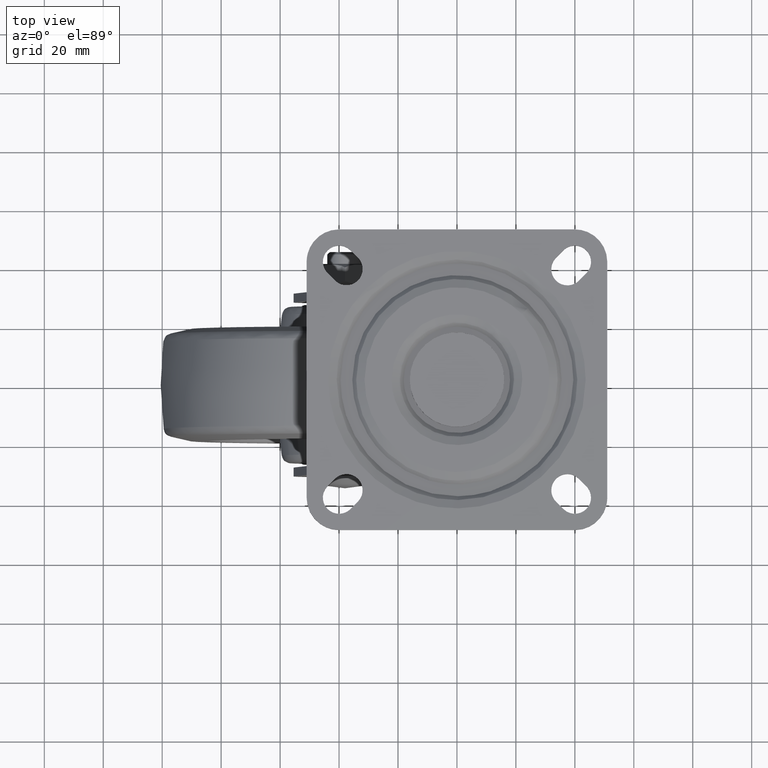
[diagram: clean part render]
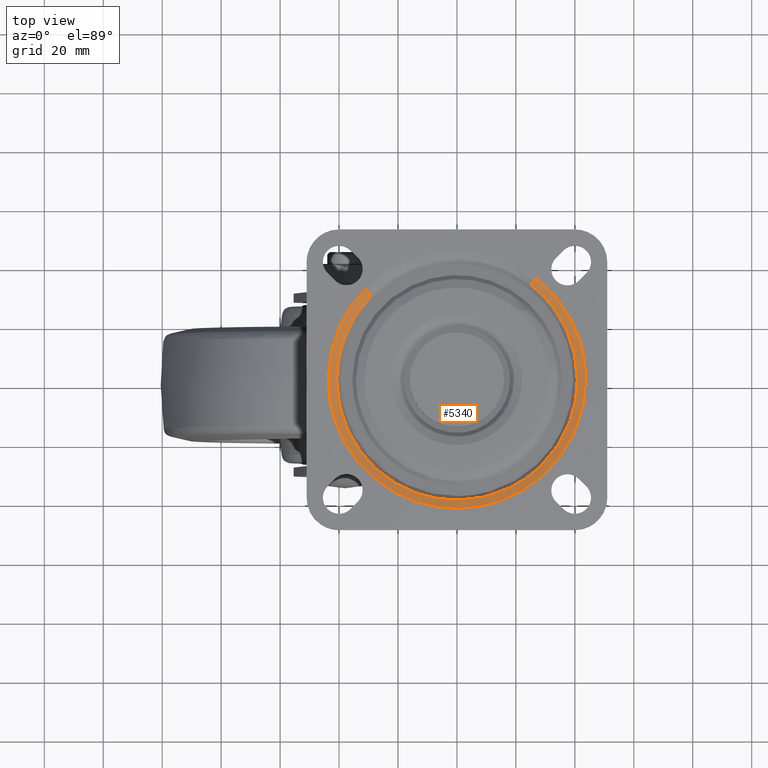
[diagram: same view with one face highlighted and labeled with its STEP entity id]
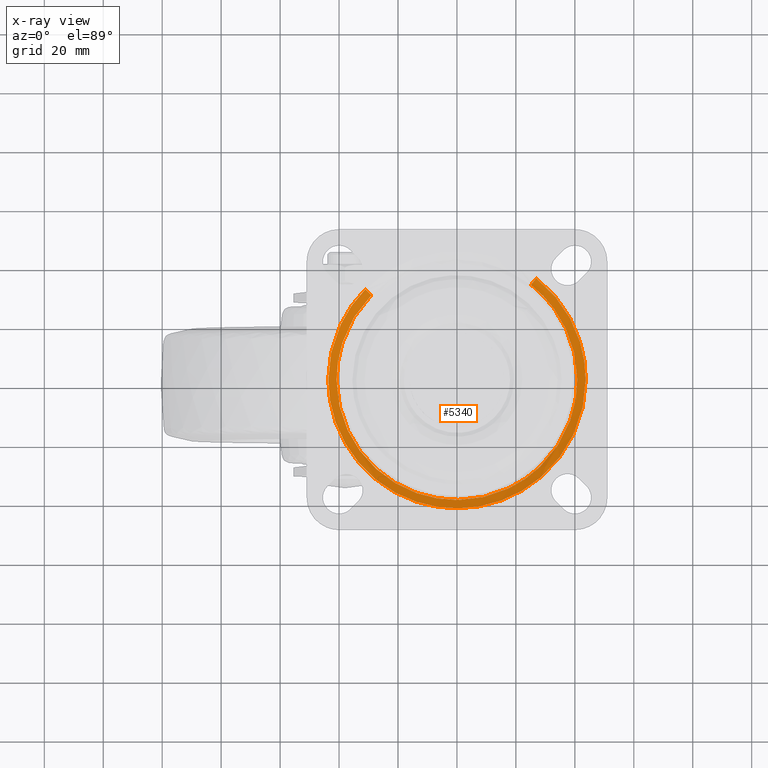
[diagram: x-ray of the same camera — body ghosted, the highlighted face saturated]
A machine part, top view. The second image highlights one B-rep face of the part: STEP entity #5340.
The next image is the same camera in x-ray: the body ghosted, the highlighted face saturated — about 0% of this face is hidden behind the body in this view.
In plain terms, the highlighted face is a freeform B-spline surface patch.
Its self-contained STEP definition (entity closure, byte-faithful):
#5033=CARTESIAN_POINT('',(28.156885566371461,-29.566032143034921,-1.171572875253788));
#5034=VERTEX_POINT('',#5033);
#5035=CARTESIAN_POINT('',(40.828427124746199,0.0,-1.171572875253816));
#5036=VERTEX_POINT('',#5035);
#5037=CARTESIAN_POINT('',(28.156885566371464,-29.566032143034917,-1.171572875253788));
#5038=CARTESIAN_POINT('',(40.828427124746192,-17.498428892025370,-1.171572875253816));
#5039=CARTESIAN_POINT('',(40.828427124746199,0.0,-1.171572875253816));
#5047=(BOUNDED_CURVE()B_SPLINE_CURVE(2,(#5037,#5038,#5039),.UNSPECIFIED.,.F.,.U.)B_SPLINE_CURVE_WITH_KNOTS((3,3),(0.871317023849534,1.0),.UNSPECIFIED.)CURVE()GEOMETRIC_REPRESENTATION_ITEM()RATIONAL_B_SPLINE_CURVE((0.853680523245777,0.849238515635182,1.0))REPRESENTATION_ITEM(''));
#5048=EDGE_CURVE('',#5034,#5036,#5047,.T.);
#5050=CARTESIAN_POINT('',(25.141878994375759,32.169028308449221,-1.171572872842143));
#5051=VERTEX_POINT('',#5050);
#5052=CARTESIAN_POINT('',(40.828427124746199,0.0,-1.171572875253816));
#5053=CARTESIAN_POINT('',(40.828427124746206,19.909121318056204,-1.171572875253816));
#5054=CARTESIAN_POINT('',(25.141878994375762,32.169028308449228,-1.171572872842143));
#5062=(BOUNDED_CURVE()B_SPLINE_CURVE(2,(#5052,#5053,#5054),.UNSPECIFIED.,.F.,.U.)B_SPLINE_CURVE_WITH_KNOTS((3,3),(0.0,0.143432082114519),.UNSPECIFIED.)CURVE()GEOMETRIC_REPRESENTATION_ITEM()RATIONAL_B_SPLINE_CURVE((1.0,0.831958863153453,0.856737647417234))REPRESENTATION_ITEM(''));
#5063=EDGE_CURVE('',#5036,#5051,#5062,.T.);
#5065=CARTESIAN_POINT('',(-29.050882544102659,28.688093086638421,-1.171572874541463));
#5066=VERTEX_POINT('',#5065);
#5082=CARTESIAN_POINT('',(-40.828427124746199,0.0,-1.171572875253816));
#5083=VERTEX_POINT('',#5082);
#5084=CARTESIAN_POINT('',(-29.050882544102652,28.688093086638421,-1.171572874541464));
#5085=CARTESIAN_POINT('',(-40.828427124746192,16.761609745065645,-1.171572875253816));
#5086=CARTESIAN_POINT('',(-40.828427124746199,0.0,-1.171572875253816));
#5094=(BOUNDED_CURVE()B_SPLINE_CURVE(2,(#5084,#5085,#5086),.UNSPECIFIED.,.F.,.U.)B_SPLINE_CURVE_WITH_KNOTS((3,3),(0.375948062567967,0.500000000000000),.UNSPECIFIED.)CURVE()GEOMETRIC_REPRESENTATION_ITEM()RATIONAL_B_SPLINE_CURVE((0.853561814883004,0.854664114981947,1.0))REPRESENTATION_ITEM(''));
#5095=EDGE_CURVE('',#5066,#5083,#5094,.T.);
#5097=CARTESIAN_POINT('',(0.356290718690434,-40.826872503352092,-1.171572875247905));
#5098=VERTEX_POINT('',#5097);
#5099=CARTESIAN_POINT('',(-40.828427124746199,0.0,-1.171572875253816));
#5100=CARTESIAN_POINT('',(-40.828427124746192,-40.828427124746192,-1.171572875253816));
#5101=CARTESIAN_POINT('',(0.0,-40.828427124746199,-1.171572875253816));
#5102=CARTESIAN_POINT('',(0.178148751046157,-40.828427124746206,-1.171572875253816));
#5103=CARTESIAN_POINT('',(0.356290718690434,-40.826872503352092,-1.171572875247905));
#5111=(BOUNDED_CURVE()B_SPLINE_CURVE(2,(#5099,#5100,#5101,#5102,#5103),.UNSPECIFIED.,.F.,.U.)B_SPLINE_CURVE_WITH_KNOTS((3,2,3),(0.500000000000000,0.750000000000000,0.751539894335362),.UNSPECIFIED.)CURVE()GEOMETRIC_REPRESENTATION_ITEM()RATIONAL_B_SPLINE_CURVE((1.0,0.707106781186548,1.0,0.998195901565933,0.996414028099538))REPRESENTATION_ITEM(''));
#5112=EDGE_CURVE('',#5083,#5098,#5111,.T.);
#5192=CARTESIAN_POINT('',(0.356290718690434,-40.826872503352099,-1.171572875247906));
#5193=CARTESIAN_POINT('',(16.480235980881410,-40.686160964743259,-1.171572875253816));
#5194=CARTESIAN_POINT('',(28.156885566371468,-29.566032143034921,-1.171572875253788));
#5202=(BOUNDED_CURVE()B_SPLINE_CURVE(2,(#5192,#5193,#5194),.UNSPECIFIED.,.F.,.U.)B_SPLINE_CURVE_WITH_KNOTS((3,3),(0.751539894335363,0.871317023849534),.UNSPECIFIED.)CURVE()GEOMETRIC_REPRESENTATION_ITEM()RATIONAL_B_SPLINE_CURVE((0.996414028099537,0.857815109939320,0.853680523245777))REPRESENTATION_ITEM(''));
#5203=EDGE_CURVE('',#5098,#5034,#5202,.T.);
#5223=CARTESIAN_POINT('',(25.076876571505366,32.085850266925519,-1.281233348189003));
#5224=CARTESIAN_POINT('',(26.935474235500088,30.633252818880720,-1.281233348189003));
#5225=CARTESIAN_POINT('',(28.613918068997251,28.975769509622911,-1.281233348189004));
#5226=CARTESIAN_POINT('',(57.589687578620151,0.361851440625657,-1.281233348189004));
#5227=CARTESIAN_POINT('',(28.975769509622911,-28.613918068997251,-1.281233348189004));
#5228=CARTESIAN_POINT('',(0.361851440625661,-57.589687578620151,-1.281233348189004));
#5229=CARTESIAN_POINT('',(-28.613918068997251,-28.975769509622911,-1.281233348189004));
#5230=CARTESIAN_POINT('',(-57.589687578620151,-0.361851440625664,-1.281233348189004));
#5231=CARTESIAN_POINT('',(-28.975769509622911,28.613918068997251,-1.281233348189004));
#5232=CARTESIAN_POINT('',(25.846280715185305,33.070302460502063,0.067128133505066));
#5233=CARTESIAN_POINT('',(27.761903533011846,31.573136683046801,0.067128133505066));
#5234=CARTESIAN_POINT('',(29.491845073440103,29.864798773831652,0.067128133505066));
#5235=CARTESIAN_POINT('',(59.356643847271748,0.372953700391544,0.067128133505066));
#5236=CARTESIAN_POINT('',(29.864798773831652,-29.491845073440103,0.067128133505066));
#5237=CARTESIAN_POINT('',(0.372953700391548,-59.356643847271748,0.067128133505066));
#5238=CARTESIAN_POINT('',(-29.491845073440103,-29.864798773831652,0.067128133505066));
#5239=CARTESIAN_POINT('',(-59.356643847271748,-0.372953700391551,0.067128133505066));
#5240=CARTESIAN_POINT('',(-29.864798773831652,29.491845073440103,0.067128133505066));
#5241=CARTESIAN_POINT('',(26.977448918346344,34.517631576225085,-0.002903787814195));
#5242=CARTESIAN_POINT('',(28.976909393306343,32.954942006740289,-0.002903787814195));
#5243=CARTESIAN_POINT('',(30.782562208614866,31.171838310352388,-0.002903787814195));
#5244=CARTESIAN_POINT('',(61.954400518967262,0.389276101737526,-0.002903787814195));
#5245=CARTESIAN_POINT('',(31.171838310352399,-30.782562208614856,-0.002903787814195));
#5246=CARTESIAN_POINT('',(0.389276101737529,-61.954400518967262,-0.002903787814195));
#5247=CARTESIAN_POINT('',(-30.782562208614856,-31.171838310352399,-0.002903787814195));
#5248=CARTESIAN_POINT('',(-61.954400518967262,-0.389276101737533,-0.002903787814195));
#5249=CARTESIAN_POINT('',(-31.171838310352399,30.782562208614856,-0.002903787814195));
#5257=(BOUNDED_SURFACE()B_SPLINE_SURFACE(2,2,((#5223,#5232,#5241),(#5224,#5233,#5242),(#5225,#5234,#5243),(#5226,#5235,#5244),(#5227,#5236,#5245),(#5228,#5237,#5246),(#5229,#5238,#5247),(#5230,#5239,#5248),(#5231,#5240,#5249)),.UNSPECIFIED.,.F.,.F.,.U.)B_SPLINE_SURFACE_WITH_KNOTS((3,2,2,2,3),(3,3),(0.0,5.806836696308559,78.392364623119278,150.977892549930000,223.563420476740700),(0.0,3.500541826521541),.UNSPECIFIED.)GEOMETRIC_REPRESENTATION_ITEM()RATIONAL_B_SPLINE_SURFACE(((0.891241358812515,0.809265806441564,0.890026792752530),(0.909573505153985,0.825911778990012,0.908333956408297),(0.931397484929456,0.845728409376524,0.930128194896666),(0.658597477573713,0.598020293312253,0.657699953984235),(0.931397484929456,0.845728409376524,0.930128194896666),(0.658597477573713,0.598020293312253,0.657699953984235),(0.931397484929456,0.845728409376524,0.930128194896666),(0.658597477573713,0.598020293312253,0.657699953984235),(0.931397484929456,0.845728409376524,0.930128194896666)))REPRESENTATION_ITEM('')SURFACE());
#5258=ORIENTED_EDGE('',*,*,#5063,.F.);
#5259=ORIENTED_EDGE('',*,*,#5048,.F.);
#5260=ORIENTED_EDGE('',*,*,#5203,.F.);
#5261=ORIENTED_EDGE('',*,*,#5112,.F.);
#5262=ORIENTED_EDGE('',*,*,#5095,.F.);
#5263=CARTESIAN_POINT('',(-31.063409349932371,30.675487316658881,-6.616970E-016));
#5264=VERTEX_POINT('',#5263);
#5265=CARTESIAN_POINT('',(-29.050882544102659,28.688093086638421,-1.171572874541463));
#5266=CARTESIAN_POINT('',(-29.884498440892536,29.511298729677943,-3.846946E-009));
#5267=CARTESIAN_POINT('',(-31.063409349932371,30.675487316658888,-6.616970E-016));
#5275=(BOUNDED_CURVE()B_SPLINE_CURVE(2,(#5265,#5266,#5267),.UNSPECIFIED.,.F.,.U.)B_SPLINE_CURVE_WITH_KNOTS((3,3),(-1.565382961396920,-0.443824324085658),.UNSPECIFIED.)CURVE()GEOMETRIC_REPRESENTATION_ITEM()RATIONAL_B_SPLINE_CURVE((0.923967181553546,0.853101096769261,0.922813124360118))REPRESENTATION_ITEM(''));
#5276=EDGE_CURVE('',#5066,#5264,#5275,.T.);
#5277=ORIENTED_EDGE('',*,*,#5276,.T.);
#5278=CARTESIAN_POINT('',(-43.656854249492397,0.0,0.0));
#5279=VERTEX_POINT('',#5278);
#5280=CARTESIAN_POINT('',(-43.656854249492397,0.0,0.0));
#5281=CARTESIAN_POINT('',(-43.656854249492397,17.922785793133357,0.0));
#5282=CARTESIAN_POINT('',(-31.063409349932375,30.675487316658881,-6.616970E-016));
#5290=(BOUNDED_CURVE()B_SPLINE_CURVE(2,(#5280,#5281,#5282),.UNSPECIFIED.,.F.,.U.)B_SPLINE_CURVE_WITH_KNOTS((3,3),(0.0,0.124051937432059),.UNSPECIFIED.)CURVE()GEOMETRIC_REPRESENTATION_ITEM()RATIONAL_B_SPLINE_CURVE((1.0,0.854664114981917,0.853561814883003))REPRESENTATION_ITEM(''));
#5291=EDGE_CURVE('',#5279,#5264,#5290,.T.);
#5292=ORIENTED_EDGE('',*,*,#5291,.F.);
#5293=CARTESIAN_POINT('',(43.656854249492397,0.0,0.0));
#5294=VERTEX_POINT('',#5293);
#5295=CARTESIAN_POINT('',(43.656854249492397,0.0,0.0));
#5296=CARTESIAN_POINT('',(43.656854249492405,-43.656854249492405,0.0));
#5297=CARTESIAN_POINT('',(0.0,-43.656854249492397,0.0));
#5298=CARTESIAN_POINT('',(-43.656854249492405,-43.656854249492405,0.0));
#5299=CARTESIAN_POINT('',(-43.656854249492397,0.0,0.0));
#5307=(BOUNDED_CURVE()B_SPLINE_CURVE(2,(#5295,#5296,#5297,#5298,#5299),.UNSPECIFIED.,.F.,.U.)B_SPLINE_CURVE_WITH_KNOTS((3,2,3),(0.500000000000000,0.750000000000000,1.0),.UNSPECIFIED.)CURVE()GEOMETRIC_REPRESENTATION_ITEM()RATIONAL_B_SPLINE_CURVE((1.0,0.707106781186547,1.0,0.707106781186547,1.0))REPRESENTATION_ITEM(''));
#5308=EDGE_CURVE('',#5294,#5279,#5307,.T.);
#5309=ORIENTED_EDGE('',*,*,#5308,.F.);
#5310=CARTESIAN_POINT('',(26.883605956355449,34.397567549942032,-6.915107E-016));
#5311=VERTEX_POINT('',#5310);
#5312=CARTESIAN_POINT('',(26.883605956355439,34.397567549942025,-6.915107E-016));
#5313=CARTESIAN_POINT('',(43.656854249492390,21.288344147084533,0.0));
#5314=CARTESIAN_POINT('',(43.656854249492397,0.0,0.0));
#5322=(BOUNDED_CURVE()B_SPLINE_CURVE(2,(#5312,#5313,#5314),.UNSPECIFIED.,.F.,.U.)B_SPLINE_CURVE_WITH_KNOTS((3,3),(0.356567917885767,0.500000000000000),.UNSPECIFIED.)CURVE()GEOMETRIC_REPRESENTATION_ITEM()RATIONAL_B_SPLINE_CURVE((0.856737647417135,0.831958863153788,1.0))REPRESENTATION_ITEM(''));
#5323=EDGE_CURVE('',#5311,#5294,#5322,.T.);
#5324=ORIENTED_EDGE('',*,*,#5323,.F.);
#5325=CARTESIAN_POINT('',(25.141878994375766,32.169028308449228,-1.171572872842144));
#5326=CARTESIAN_POINT('',(25.863325924361057,33.092119487175431,-3.719335E-009));
#5327=CARTESIAN_POINT('',(26.883605956355453,34.397567549942032,-6.915107E-016));
#5335=(BOUNDED_CURVE()B_SPLINE_CURVE(2,(#5325,#5326,#5327),.UNSPECIFIED.,.F.,.U.)B_SPLINE_CURVE_WITH_KNOTS((3,3),(-1.565382959635010,-0.443824323972865),.UNSPECIFIED.)CURVE()GEOMETRIC_REPRESENTATION_ITEM()RATIONAL_B_SPLINE_CURVE((0.884131369479283,0.816320597009705,0.883027068397765))REPRESENTATION_ITEM(''));
#5336=EDGE_CURVE('',#5051,#5311,#5335,.T.);
#5337=ORIENTED_EDGE('',*,*,#5336,.F.);
#5338=EDGE_LOOP('',(#5258,#5259,#5260,#5261,#5262,#5277,#5292,#5309,#5324,#5337));
#5339=FACE_OUTER_BOUND('',#5338,.T.);
#5340=ADVANCED_FACE('',(#5339),#5257,.T.);